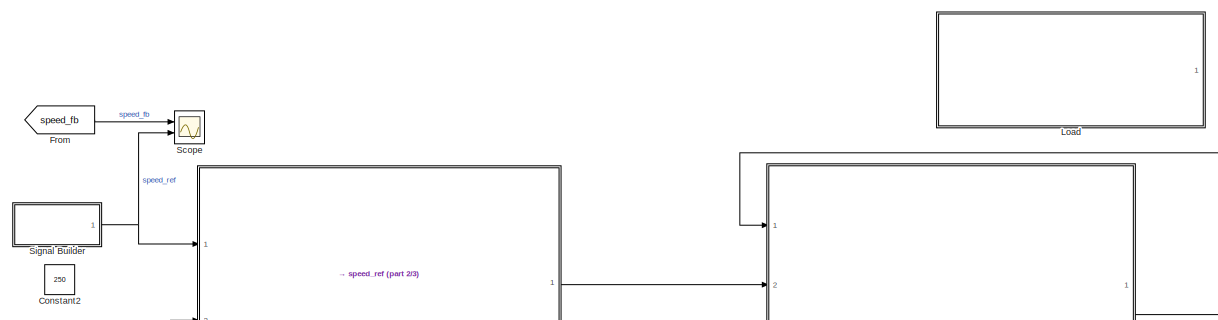
[diagram: root canvas - part 1/3, middle left region]
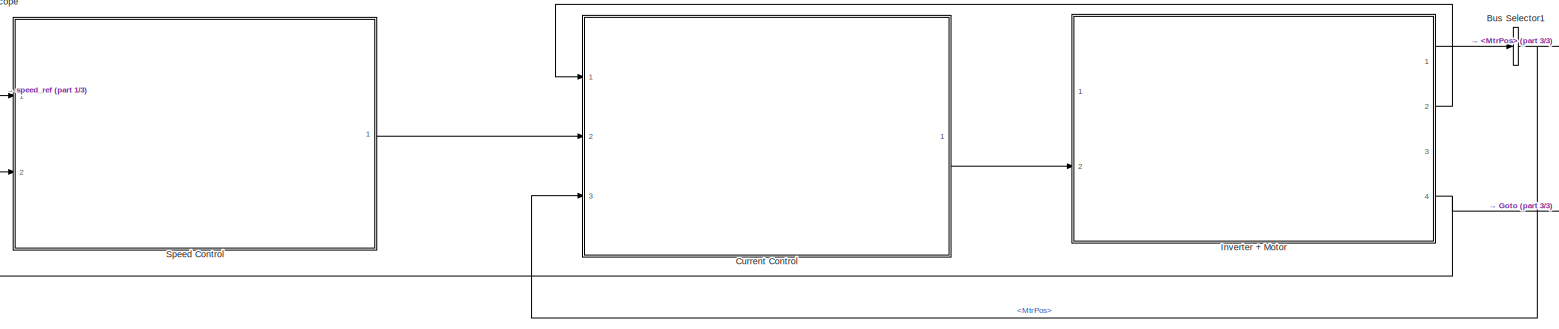
[diagram: root canvas - part 2/3, full width, middle band]
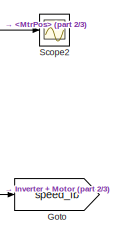
[diagram: root canvas - part 3/3, middle right region]
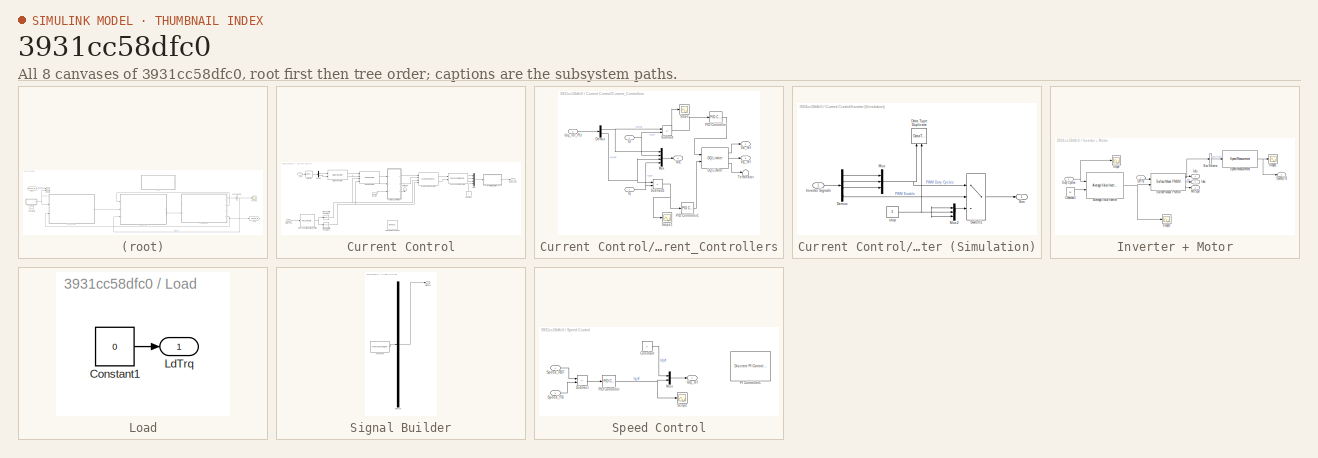
[diagram: thumbnail index - all 8 canvases of the model, root first then tree order]
MODEL slx_3931cc58dfc0
KIND model
CONFIG AbsTol = auto
CONFIG EnableMultiTasking = off
CONFIG FixedStep = 1e-05
CONFIG MaxStep = auto
CONFIG MinStep = auto
CONFIG RelTol = 1e-3
CONFIG SampleTimeConstraint = Unconstrained
CONFIG SolverName = FixedStepAuto
CONFIG StartTime = 0.0
CONFIG StopTime = 0.1
BLOCK [BusSelector] Bus Selector1
  OutputSignals = MtrPos
  Ports = [1, 1]
BLOCK [Constant] Constant2
  Value = 250
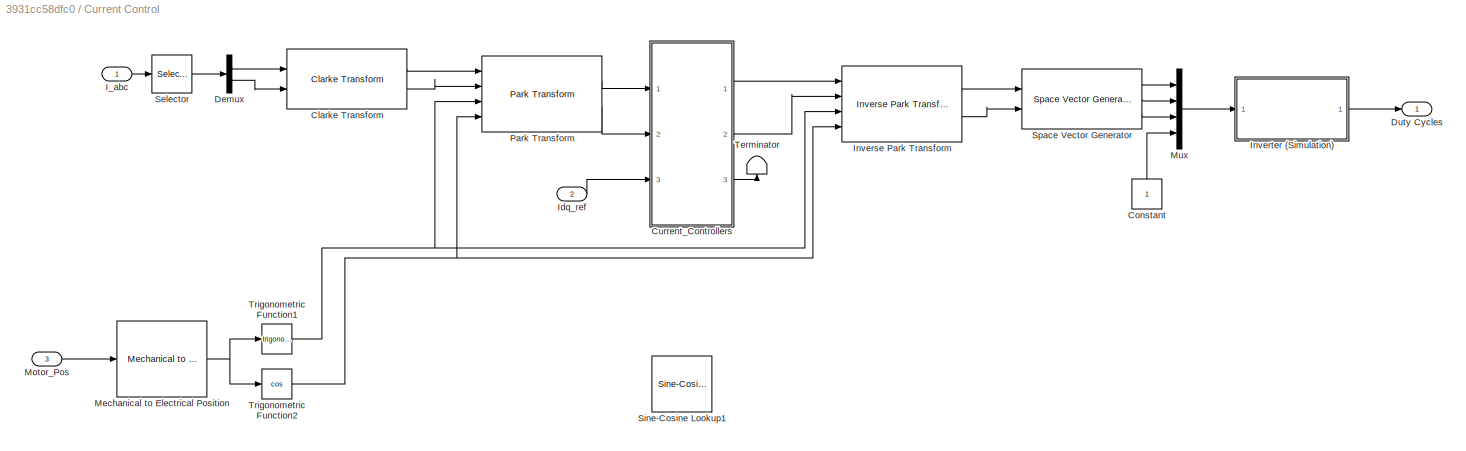
BLOCK [SubSystem] Current Control
  Ports = [3, 1]
  RequestExecContextInheritance = off
BLOCK [Reference] Current Control/Clarke Transform  REF=mcbcontrolslib/Clarke Transform
  Ports = [2, 2]
  SourceBlock = mcbcontrolslib/Clarke Transform
  SourceProductBaseCode = MT
  SourceType = Clarke Transform
BLOCK [Constant] Current Control/Constant
  NameLocation = right
  OutDataTypeStr = single
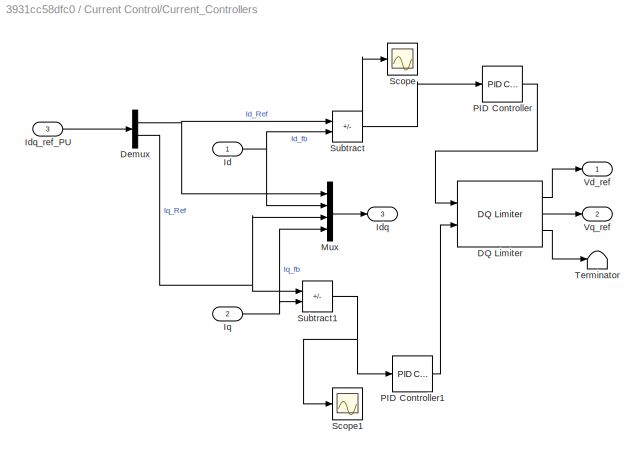
BLOCK [SubSystem] Current Control/Current_Controllers
  Ports = [3, 3]
  RequestExecContextInheritance = off
BLOCK [Reference] Current Control/Current_Controllers/DQ Limiter  REF=mcbcontrolslib/DQ Limiter
  Ports = [2, 3]
  SourceBlock = mcbcontrolslib/DQ Limiter
  SourceProductBaseCode = MT
  SourceType = DQ Limiter
BLOCK [Demux] Current Control/Current_Controllers/Demux
  Outputs = 2
  Ports = [1, 2]
BLOCK [Inport] Current Control/Current_Controllers/Id
BLOCK [Outport] Current Control/Current_Controllers/Idq
  Port = 3
  VectorParamsAs1DForOutWhenUnconnected = off
BLOCK [Inport] Current Control/Current_Controllers/Idq_ref_PU
  Port = 3
BLOCK [Inport] Current Control/Current_Controllers/Iq
  Port = 2
BLOCK [Mux] Current Control/Current_Controllers/Mux
  DisplayOption = bar
  Ports = [4, 1]
BLOCK [Reference] Current Control/Current_Controllers/PID Controller  REF=pid_lib/PID Controller
  Ports = [1, 1]
  SourceBlock = pid_lib/PID Controller
  SourceProductBaseCode = SL
  SourceType = PID 1dof
BLOCK [Reference] Current Control/Current_Controllers/PID Controller1  REF=pid_lib/PID Controller
  Ports = [1, 1]
  SourceBlock = pid_lib/PID Controller
  SourceProductBaseCode = SL
  SourceType = PID 1dof
BLOCK [Scope] Current Control/Current_Controllers/Scope
  Floating = off
  NumInputPorts = 1
  Ports = [1]
  ScopeSpecificationString = Simulink.scopes.TimeScopeBlockCfg('CurrentConfiguration', extmgr.ConfigurationSet(extmgr.Configuration('Core','General UI',true),extmgr.Configuration('Core','Source UI',true),extmgr.Configuration('Sources','WiredSimulink',true,'DataLoggingVariableName','ScopeData2'),extmgr.Configuration('Visuals','Time Domain',true,'SerializedDisplays',{struct('MinYLimReal','-706.25437','MaxYLimReal','660.92093','...<+1454ch>
BLOCK [Scope] Current Control/Current_Controllers/Scope1
  Floating = off
  NumInputPorts = 1
  Ports = [1]
  ScopeSpecificationString = Simulink.scopes.TimeScopeBlockCfg('CurrentConfiguration', extmgr.ConfigurationSet(extmgr.Configuration('Core','General UI',true),extmgr.Configuration('Core','Source UI',true),extmgr.Configuration('Sources','WiredSimulink',true,'DataLoggingVariableName','ScopeData3'),extmgr.Configuration('Visuals','Time Domain',true,'SerializedDisplays',{struct('MinYLimReal','-546.79278','MaxYLimReal','1175.29051',...<+1415ch>
BLOCK [Sum] Current Control/Current_Controllers/Subtract
  IconShape = rectangular
  Inputs = +-
  Ports = [2, 1]
BLOCK [Sum] Current Control/Current_Controllers/Subtract1
  IconShape = rectangular
  Inputs = +-
  Ports = [2, 1]
BLOCK [Terminator] Current Control/Current_Controllers/Terminator
BLOCK [Outport] Current Control/Current_Controllers/Vd_ref
  VectorParamsAs1DForOutWhenUnconnected = off
BLOCK [Outport] Current Control/Current_Controllers/Vq_ref
  Port = 2
  VectorParamsAs1DForOutWhenUnconnected = off
BLOCK [Demux] Current Control/Demux
  Outputs = 2
  Ports = [1, 2]
BLOCK [Outport] Current Control/Duty Cycles
BLOCK [Inport] Current Control/I_abc
BLOCK [Inport] Current Control/Idq_ref
  Port = 2
BLOCK [Reference] Current Control/Inverse Park Transform  REF=mcbcontrolslib/Inverse Park Transform
  Ports = [4, 2]
  SourceBlock = mcbcontrolslib/Inverse Park Transform
  SourceProductBaseCode = MT
  SourceType = Inverse Park Transform
BLOCK [SubSystem] Current Control/Inverter (Simulation)
  Ports = [1, 1]
  RequestExecContextInheritance = off
BLOCK [DataTypeDuplicate] Current Control/Inverter (Simulation)/Data Type Duplicate
  Ports = [2]
BLOCK [Demux] Current Control/Inverter (Simulation)/Demux
  Ports = [1, 4]
BLOCK [Inport] Current Control/Inverter (Simulation)/Inverter Signals
BLOCK [Mux] Current Control/Inverter (Simulation)/Mux
  DisplayOption = bar
  Inputs = 3
  Ports = [3, 1]
BLOCK [Mux] Current Control/Inverter (Simulation)/Mux2
  DisplayOption = bar
  Inputs = 3
  Ports = [3, 1]
BLOCK [Outport] Current Control/Inverter (Simulation)/Sim
  VectorParamsAs1DForOutWhenUnconnected = off
BLOCK [Switch] Current Control/Inverter (Simulation)/Switch1
  InputSameDT = off
  RndMeth = Simplest
  SaturateOnIntegerOverflow = off
  Threshold = 0.5
BLOCK [Constant] Current Control/Inverter (Simulation)/stop
  OutDataTypeStr = Inherit: Inherit via back propagation
  Value = 0
BLOCK [Reference] Current Control/Mechanical to Electrical Position  REF=mcbpositiondecoderlib/Mechanical to Electrical Position
  Ports = [1, 1]
  SourceBlock = mcbpositiondecoderlib/Mechanical to Electrical Position
  SourceProductBaseCode = MT
  SourceType = Mechanical to Electrical Position
BLOCK [Inport] Current Control/Motor_Pos
  Port = 3
BLOCK [Mux] Current Control/Mux
  DisplayOption = bar
  Ports = [4, 1]
BLOCK [Reference] Current Control/Park Transform  REF=mcbcontrolslib/Park Transform
  Ports = [4, 2]
  SourceBlock = mcbcontrolslib/Park Transform
  SourceProductBaseCode = MT
  SourceType = Park Transform
BLOCK [Selector] Current Control/Selector
  IndexOptions = Index vector (dialog)
  Indices = [1 2]
  InputPortWidth = 3
  OutputSizes = 1
  Ports = [1, 1]
BLOCK [Reference] Current Control/Sine-Cosine Lookup1  REF=mcbcontrolslib/Sine-Cosine Lookup
  Commented = on
  Ports = [1, 2]
  SourceBlock = mcbcontrolslib/Sine-Cosine Lookup
  SourceProductBaseCode = MT
  SourceType = Sine-Cosine Lookup
BLOCK [Reference] Current Control/Space Vector Generator  REF=mcbcontrolslib/Space Vector Generator
  Ports = [2, 3]
  SourceBlock = mcbcontrolslib/Space Vector Generator
  SourceProductBaseCode = MT
  SourceType = PWM Modulation
BLOCK [Terminator] Current Control/Terminator
  NameLocation = right
BLOCK [Trigonometry] Current Control/Trigonometric Function1
  Ports = [1, 1]
BLOCK [Trigonometry] Current Control/Trigonometric Function2
  Operator = cos
  Ports = [1, 1]
BLOCK [From] From
  GotoTag = speed_fb
BLOCK [Goto] Goto
  GotoTag = speed_fb
BLOCK [SubSystem] Inverter + Motor
  Ports = [2, 4]
  RequestExecContextInheritance = off
BLOCK [Reference] Inverter + Motor/Average-Value Inverter  REF=mcbplantlib/Average-Value Inverter
  Ports = [2, 1]
  SourceBlock = mcbplantlib/Average-Value Inverter
  SourceProductBaseCode = MT
  SourceType = Average Value Inverter
BLOCK [BusSelector] Inverter + Motor/Bus Selector
  OutputSignals = MtrPos
  Ports = [1, 1]
BLOCK [Constant] Inverter + Motor/Constant3
  Value = 28
BLOCK [Inport] Inverter + Motor/Duty Cycles
  Port = 2
BLOCK [Outport] Inverter + Motor/Iabc
  Port = 2
BLOCK [Outport] Inverter + Motor/Info
BLOCK [Inport] Inverter + Motor/LdTrq
BLOCK [Outport] Inverter + Motor/MtrSpd
  Port = 3
BLOCK [Scope] Inverter + Motor/Scope
  Floating = off
  NumInputPorts = 1
  Ports = [1]
  ScopeSpecificationString = Simulink.scopes.TimeScopeBlockCfg('CurrentConfiguration', extmgr.ConfigurationSet(extmgr.Configuration('Core','General UI',true),extmgr.Configuration('Core','Source UI',true),extmgr.Configuration('Sources','WiredSimulink',true,'DataLoggingVariableName','ScopeData1'),extmgr.Configuration('Visuals','Time Domain',true,'SerializedDisplays',{struct('MinYLimReal','-1.1875','MaxYLimReal','1.1875','YLabel...<+1471ch>
BLOCK [Scope] Inverter + Motor/Scope1
  Floating = off
  NumInputPorts = 1
  Ports = [1]
  ScopeSpecificationString = Simulink.scopes.TimeScopeBlockCfg('CurrentConfiguration', extmgr.ConfigurationSet(extmgr.Configuration('Core','General UI',true),extmgr.Configuration('Core','Source UI',true),extmgr.Configuration('Sources','WiredSimulink',true,'DataLoggingVariableName','ScopeData1'),extmgr.Configuration('Visuals','Time Domain',true,'SerializedDisplays',{struct('MinYLimReal','-37.56444','MaxYLimReal','338.07998','Y...<+1415ch>
BLOCK [Scope] Inverter + Motor/Scope2
  Floating = off
  NumInputPorts = 1
  Ports = [1]
  ScopeSpecificationString = Simulink.scopes.TimeScopeBlockCfg('CurrentConfiguration', extmgr.ConfigurationSet(extmgr.Configuration('Core','General UI',true),extmgr.Configuration('Core','Source UI',true),extmgr.Configuration('Sources','WiredSimulink',true,'DataLoggingVariableName','ScopeData1'),extmgr.Configuration('Visuals','Time Domain',true,'SerializedDisplays',{struct('MinYLimReal','-19.49309','MaxYLimReal','21.8696','YLa...<+1514ch>
BLOCK [Reference] Inverter + Motor/Speed Measurement  REF=mcbpositiondecoderlib/Speed Measurement
  Ports = [1, 1]
  SourceBlock = mcbpositiondecoderlib/Speed Measurement
  SourceProductBaseCode = MT
  SourceType = Speed Measurement
BLOCK [Outport] Inverter + Motor/Speed_FB
  Port = 4
BLOCK [Reference] Inverter + Motor/Surface Mount PMSM  REF=autolibpmsmexterior/Surface Mount PMSM
  Ports = [2, 3]
  SourceBlock = autolibpmsmexterior/Surface Mount PMSM
  SourceProductBaseCode = PW,DR,MT,VE
  SourceType = Surface Mount PMSM
BLOCK [SubSystem] Load
  Commented = on
  Ports = [0, 1]
  RequestExecContextInheritance = off
BLOCK [Constant] Load/Constant1
  Value = 0
BLOCK [Outport] Load/LdTrq
BLOCK [Scope] Scope
  Floating = off
  NumInputPorts = 2
  Ports = [2]
  ScopeSpecificationString = Simulink.scopes.TimeScopeBlockCfg('CurrentConfiguration', extmgr.ConfigurationSet(extmgr.Configuration('Core','General UI',true),extmgr.Configuration('Core','Source UI',true),extmgr.Configuration('Sources','WiredSimulink',true,'DataLoggingVariableName','ScopeData2'),extmgr.Configuration('Visuals','Time Domain',true,'SerializedDisplays',{struct('MinYLimReal','296.80819','MaxYLimReal','304.57852','Y...<+1441ch>
BLOCK [Scope] Scope2
  Floating = off
  NumInputPorts = 1
  Ports = [1]
  ScopeSpecificationString = Simulink.scopes.TimeScopeBlockCfg('CurrentConfiguration', extmgr.ConfigurationSet(extmgr.Configuration('Core','General UI',true),extmgr.Configuration('Core','Source UI',true),extmgr.Configuration('Sources','WiredSimulink',true,'DataLoggingVariableName','ScopeData3'),extmgr.Configuration('Visuals','Time Domain',true,'SerializedDisplays',{struct('MinYLimReal','-3.92699','MaxYLimReal','3.92699','YLab...<+1465ch>
BLOCK [SubSystem] Signal Builder
  ClipboardFcn = sigbuilder_block('clipboard');
  CloseFcn = sigbuilder_block('close');
  ContinueFcn = sigbuilder_block('continue');
  CopyFcn = sigbuilder_block('copy');
  DeleteFcn = sigbuilder_block('delete');
  LoadFcn = sigbuilder_block('load');
  MaskHideContents = on
  ModelCloseFcn = sigbuilder_block('modelClose');
  NameChangeFcn = sigbuilder_block('namechange');
  OpenFcn = sigbuilder_block('open',[0 36 1152 555.6 ]);
  PauseFcn = sigbuilder_block('pause');
  Ports = [0, 1]
  PreSaveFcn = sigbuilder_block('preSave');
  RequestExecContextInheritance = off
  StartFcn = sigbuilder_block('start');
  StopFcn = sigbuilder_block('stop');
  Tag = STV Subsys
BLOCK [Demux] Signal Builder/Demux
  DisplayOption = none
  Outputs = 1
  Ports = [1, 1]
  Tag = STV Demux
BLOCK [FromWorkspace] Signal Builder/FromWs
  Tag = STV FromWs
  VariableName = tuvar
BLOCK [Outport] Signal Builder/Signal 1
  Tag = STV Outport
BLOCK [SubSystem] Speed Control
  Ports = [2, 1]
  RequestExecContextInheritance = off
BLOCK [Constant] Speed Control/Constant
  Value = 0
BLOCK [Outport] Speed Control/Idq_ref
BLOCK [Mux] Speed Control/Mux
  DisplayOption = bar
  Inputs = 2
  Ports = [2, 1]
BLOCK [Reference] Speed Control/PI Controller1  REF=mcbcontrolslib/Discrete PI Controller  with anti-windup & reset
  Ports = [1, 1]
  SourceBlock = mcbcontrolslib/Discrete PI Controller  with anti-windup & reset
  SourceProductBaseCode = SL
  SourceType = PID 1dof
BLOCK [Reference] Speed Control/PID Controller  REF=pid_lib/PID Controller
  Ports = [1, 1]
  SourceBlock = pid_lib/PID Controller
  SourceProductBaseCode = SL
  SourceType = PID 1dof
BLOCK [Scope] Speed Control/Scope
  Floating = off
  NumInputPorts = 1
  Ports = [1]
  ScopeSpecificationString = Simulink.scopes.TimeScopeBlockCfg('CurrentConfiguration', extmgr.ConfigurationSet(extmgr.Configuration('Core','General UI',true),extmgr.Configuration('Core','Source UI',true),extmgr.Configuration('Sources','WiredSimulink',true),extmgr.Configuration('Visuals','Time Domain',true,'SerializedDisplays',{struct('MinYLimReal','30.00000','MaxYLimReal','50.00000','YLabelReal','','MinYLimMag','30.00000','Ma...<+1382ch>
BLOCK [Inport] Speed Control/Speed_FB
  Port = 2
BLOCK [Inport] Speed Control/Speed_REF
BLOCK [Sum] Speed Control/Subtract
  IconShape = rectangular
  Inputs = +-
  Ports = [2, 1]
NET Bus Selector1:1 -> Current Control:3, Scope2:1
LINE Current Control/Clarke Transform:1 -> Current Control/Park Transform:1
LINE Current Control/Clarke Transform:2 -> Current Control/Park Transform:2
LINE Current Control/Constant:1 -> Current Control/Mux:4
LINE Current Control/Current_Controllers/DQ Limiter:1 -> Current Control/Current_Controllers/Vd_ref:1
LINE Current Control/Current_Controllers/DQ Limiter:2 -> Current Control/Current_Controllers/Vq_ref:1
LINE Current Control/Current_Controllers/DQ Limiter:3 -> Current Control/Current_Controllers/Terminator:1
NET Current Control/Current_Controllers/Demux:1 -> Current Control/Current_Controllers/Mux:1, Current Control/Current_Controllers/Subtract:1
NET Current Control/Current_Controllers/Demux:2 -> Current Control/Current_Controllers/Mux:3, Current Control/Current_Controllers/Subtract1:1
NET Current Control/Current_Controllers/Id:1 -> Current Control/Current_Controllers/Mux:2, Current Control/Current_Controllers/Subtract:2
LINE Current Control/Current_Controllers/Idq_ref_PU:1 -> Current Control/Current_Controllers/Demux:1
NET Current Control/Current_Controllers/Iq:1 -> Current Control/Current_Controllers/Mux:4, Current Control/Current_Controllers/Subtract1:2
LINE Current Control/Current_Controllers/Mux:1 -> Current Control/Current_Controllers/Idq:1
LINE Current Control/Current_Controllers/PID Controller1:1 -> Current Control/Current_Controllers/DQ Limiter:2
LINE Current Control/Current_Controllers/PID Controller:1 -> Current Control/Current_Controllers/DQ Limiter:1
NET Current Control/Current_Controllers/Subtract1:1 -> Current Control/Current_Controllers/PID Controller1:1, Current Control/Current_Controllers/Scope1:1
NET Current Control/Current_Controllers/Subtract:1 -> Current Control/Current_Controllers/PID Controller:1, Current Control/Current_Controllers/Scope:1
LINE Current Control/Current_Controllers:1 -> Current Control/Inverse Park Transform:1
LINE Current Control/Current_Controllers:2 -> Current Control/Inverse Park Transform:2
LINE Current Control/Current_Controllers:3 -> Current Control/Terminator:1
LINE Current Control/Demux:1 -> Current Control/Clarke Transform:1
LINE Current Control/Demux:2 -> Current Control/Clarke Transform:2
LINE Current Control/I_abc:1 -> Current Control/Selector:1
LINE Current Control/Idq_ref:1 -> Current Control/Current_Controllers:3
LINE Current Control/Inverse Park Transform:1 -> Current Control/Space Vector Generator:1
LINE Current Control/Inverse Park Transform:2 -> Current Control/Space Vector Generator:2
LINE Current Control/Inverter (Simulation)/Demux:1 -> Current Control/Inverter (Simulation)/Mux:1
LINE Current Control/Inverter (Simulation)/Demux:2 -> Current Control/Inverter (Simulation)/Mux:2
LINE Current Control/Inverter (Simulation)/Demux:3 -> Current Control/Inverter (Simulation)/Mux:3
LINE Current Control/Inverter (Simulation)/Demux:4 -> Current Control/Inverter (Simulation)/Switch1:2
LINE Current Control/Inverter (Simulation)/Inverter Signals:1 -> Current Control/Inverter (Simulation)/Demux:1
LINE Current Control/Inverter (Simulation)/Mux2:1 -> Current Control/Inverter (Simulation)/Switch1:3
NET Current Control/Inverter (Simulation)/Mux:1 -> Current Control/Inverter (Simulation)/Data Type Duplicate:1, Current Control/Inverter (Simulation)/Switch1:1
LINE Current Control/Inverter (Simulation)/Switch1:1 -> Current Control/Inverter (Simulation)/Sim:1
NET Current Control/Inverter (Simulation)/stop:1 -> Current Control/Inverter (Simulation)/Data Type Duplicate:2, Current Control/Inverter (Simulation)/Mux2:1, Current Control/Inverter (Simulation)/Mux2:2, Current Control/Inverter (Simulation)/Mux2:3
LINE Current Control/Inverter (Simulation):1 -> Current Control/Duty Cycles:1
NET Current Control/Mechanical to Electrical Position:1 -> Current Control/Trigonometric Function1:1, Current Control/Trigonometric Function2:1
LINE Current Control/Motor_Pos:1 -> Current Control/Mechanical to Electrical Position:1
LINE Current Control/Mux:1 -> Current Control/Inverter (Simulation):1
LINE Current Control/Park Transform:1 -> Current Control/Current_Controllers:1
LINE Current Control/Park Transform:2 -> Current Control/Current_Controllers:2
LINE Current Control/Selector:1 -> Current Control/Demux:1
LINE Current Control/Space Vector Generator:1 -> Current Control/Mux:1
LINE Current Control/Space Vector Generator:2 -> Current Control/Mux:2
LINE Current Control/Space Vector Generator:3 -> Current Control/Mux:3
NET Current Control/Trigonometric Function1:1 -> Current Control/Inverse Park Transform:3, Current Control/Park Transform:3
NET Current Control/Trigonometric Function2:1 -> Current Control/Inverse Park Transform:4, Current Control/Park Transform:4
LINE Current Control:1 -> Inverter + Motor:2
LINE From:1 -> Scope:1
NET Inverter + Motor/Average-Value Inverter:1 -> Inverter + Motor/Scope2:1, Inverter + Motor/Surface Mount PMSM:2
LINE Inverter + Motor/Bus Selector:1 -> Inverter + Motor/Speed Measurement:1
LINE Inverter + Motor/Constant3:1 -> Inverter + Motor/Average-Value Inverter:2
NET Inverter + Motor/Duty Cycles:1 -> Inverter + Motor/Average-Value Inverter:1, Inverter + Motor/Scope:1
LINE Inverter + Motor/LdTrq:1 -> Inverter + Motor/Surface Mount PMSM:1
NET Inverter + Motor/Speed Measurement:1 -> Inverter + Motor/Scope1:1, Inverter + Motor/Speed_FB:1
NET Inverter + Motor/Surface Mount PMSM:1 -> Inverter + Motor/Bus Selector:1, Inverter + Motor/Info:1
LINE Inverter + Motor/Surface Mount PMSM:2 -> Inverter + Motor/Iabc:1
LINE Inverter + Motor/Surface Mount PMSM:3 -> Inverter + Motor/MtrSpd:1
LINE Inverter + Motor:1 -> Bus Selector1:1
LINE Inverter + Motor:2 -> Current Control:1
NET Inverter + Motor:4 -> Goto:1, Speed Control:2
LINE Load/Constant1:1 -> Load/LdTrq:1
NET Signal Builder:1 -> Scope:2, Speed Control:1
LINE Speed Control/Constant:1 -> Speed Control/Mux:1
LINE Speed Control/Mux:1 -> Speed Control/Idq_ref:1
NET Speed Control/PID Controller:1 -> Speed Control/Mux:2, Speed Control/Scope:1
LINE Speed Control/Speed_FB:1 -> Speed Control/Subtract:2
LINE Speed Control/Speed_REF:1 -> Speed Control/Subtract:1
LINE Speed Control/Subtract:1 -> Speed Control/PID Controller:1
LINE Speed Control:1 -> Current Control:2
note: NET lines group one-source signal fan-out (src -> all destinations, sorted); 1:1 wires keep LINE
